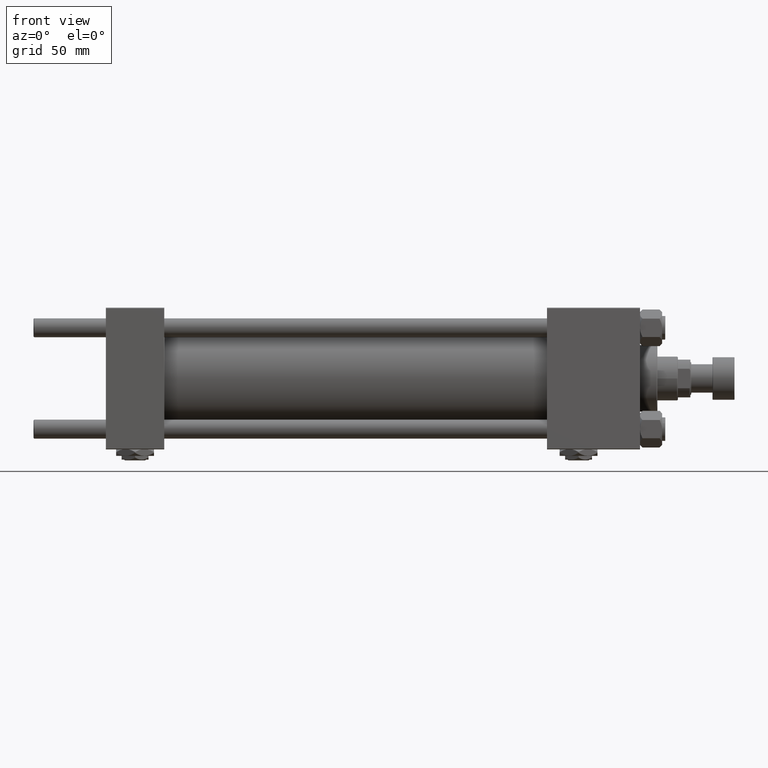
[diagram: clean part render]
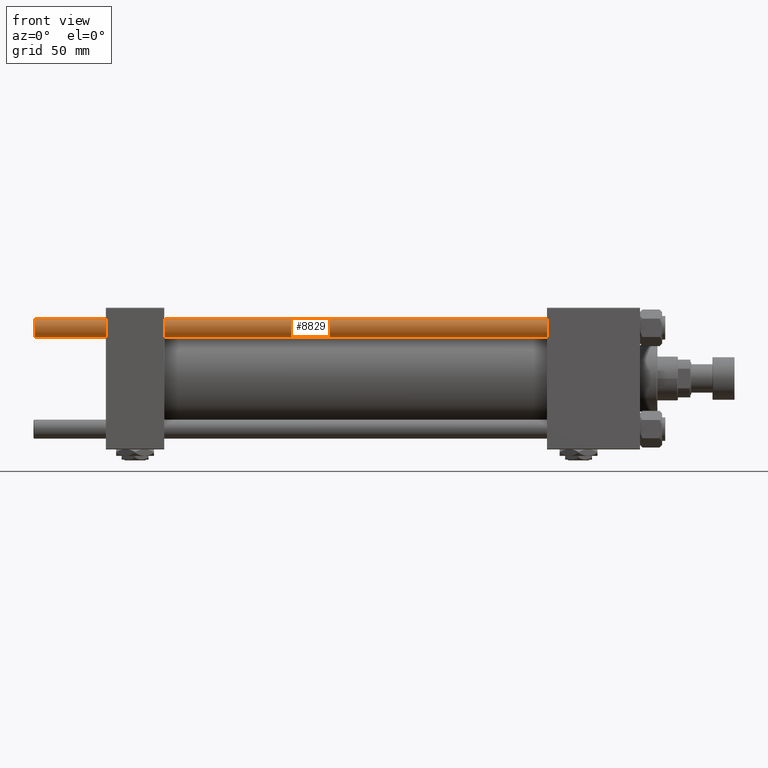
[diagram: same view with one face highlighted and labeled with its STEP entity id]
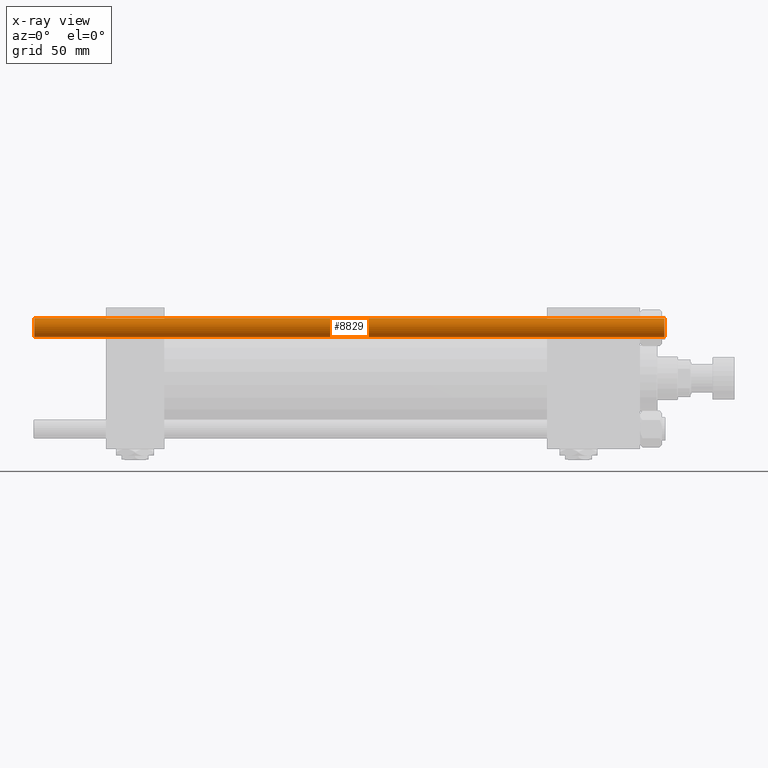
[diagram: x-ray of the same camera — body ghosted, the highlighted face saturated]
A machine part, front view. The second image highlights one B-rep face of the part: STEP entity #8829.
The next image is the same camera in x-ray: the body ghosted, the highlighted face saturated — about 0% of this face is hidden behind the body in this view.
In plain terms, the highlighted cylindrical surface (edge-blend (fillet) strip) has radius 6 mm, axis along (1, -0, 0).
Its self-contained STEP definition (entity closure, byte-faithful):
#1409 = AXIS2_PLACEMENT_3D ( 'NONE', #18432, #39314, #18964 ) ;
#1599 = DIRECTION ( 'NONE',  ( -0.000000000000000000, -0.000000000000000000, 1.000000000000000000 ) ) ;
#1872 = DIRECTION ( 'NONE',  ( 1.000000000000000000, 0.000000000000000000, 0.000000000000000000 ) ) ;
#2033 = DIRECTION ( 'NONE',  ( 1.000000000000000000, 0.000000000000000000, 0.000000000000000000 ) ) ;
#2417 = EDGE_CURVE ( 'NONE', #11493, #34510, #41577, .T. ) ;
#2992 = EDGE_LOOP ( 'NONE', ( #15939, #36161, #38729, #7906 ) ) ;
#6173 = VECTOR ( 'NONE', #31065, 1000.000000000000000 ) ;
#6297 = DIRECTION ( 'NONE',  ( -0.000000000000000000, -0.000000000000000000, -1.000000000000000000 ) ) ;
#7906 = ORIENTED_EDGE ( 'NONE', *, *, #45490, .F. ) ;
#8829 = ADVANCED_FACE ( 'NONE', ( #51747 ), #15504, .T. ) ;
#10263 = CARTESIAN_POINT ( 'NONE',  ( -6.000000000000000888, 0.000000000000000000, 401.0000000000000000 ) ) ;
#11493 = VERTEX_POINT ( 'NONE', #41270 ) ;
#15504 = CYLINDRICAL_SURFACE ( 'NONE', #1409, 6.000000000000000888 ) ;
#15939 = ORIENTED_EDGE ( 'NONE', *, *, #2417, .T. ) ;
#17094 = VERTEX_POINT ( 'NONE', #28984 ) ;
#18432 = CARTESIAN_POINT ( 'NONE',  ( 0.000000000000000000, 0.000000000000000000, 401.0000000000000000 ) ) ;
#18792 = AXIS2_PLACEMENT_3D ( 'NONE', #46194, #42191, #2033 ) ;
#18964 = DIRECTION ( 'NONE',  ( -1.000000000000000000, 0.000000000000000000, 0.000000000000000000 ) ) ;
#20499 = VECTOR ( 'NONE', #6297, 1000.000000000000000 ) ;
#23889 = VERTEX_POINT ( 'NONE', #38184 ) ;
#24379 = EDGE_CURVE ( 'NONE', #23889, #17094, #41598, .T. ) ;
#26395 = LINE ( 'NONE', #10263, #20499 ) ;
#28984 = CARTESIAN_POINT ( 'NONE',  ( -6.000000000000000888, 0.000000000000000000, 0.5000000000003335110 ) ) ;
#31065 = DIRECTION ( 'NONE',  ( -0.000000000000000000, -0.000000000000000000, -1.000000000000000000 ) ) ;
#34510 = VERTEX_POINT ( 'NONE', #35659 ) ;
#35659 = CARTESIAN_POINT ( 'NONE',  ( 6.000000000000000888, 7.347880794884119736E-16, 400.5000000000003411 ) ) ;
#36161 = ORIENTED_EDGE ( 'NONE', *, *, #50952, .T. ) ;
#37821 = CARTESIAN_POINT ( 'NONE',  ( 0.000000000000000000, 0.000000000000000000, 0.5000000000003335110 ) ) ;
#38184 = CARTESIAN_POINT ( 'NONE',  ( 6.000000000000000888, 7.347880794884119736E-16, 0.5000000000003335110 ) ) ;
#38729 = ORIENTED_EDGE ( 'NONE', *, *, #24379, .T. ) ;
#39314 = DIRECTION ( 'NONE',  ( -0.000000000000000000, -0.000000000000000000, -1.000000000000000000 ) ) ;
#41270 = CARTESIAN_POINT ( 'NONE',  ( -6.000000000000000888, 0.000000000000000000, 400.5000000000003411 ) ) ;
#41577 = CIRCLE ( 'NONE', #18792, 6.000000000000000888 ) ;
#41598 = CIRCLE ( 'NONE', #45790, 6.000000000000000888 ) ;
#42191 = DIRECTION ( 'NONE',  ( 0.000000000000000000, 0.000000000000000000, -1.000000000000000000 ) ) ;
#43211 = CARTESIAN_POINT ( 'NONE',  ( 6.000000000000000888, 7.347880794884119736E-16, 401.0000000000000000 ) ) ;
#45490 = EDGE_CURVE ( 'NONE', #11493, #17094, #26395, .T. ) ;
#45790 = AXIS2_PLACEMENT_3D ( 'NONE', #37821, #1599, #1872 ) ;
#46194 = CARTESIAN_POINT ( 'NONE',  ( 0.000000000000000000, 0.000000000000000000, 400.5000000000003411 ) ) ;
#50952 = EDGE_CURVE ( 'NONE', #34510, #23889, #51182, .T. ) ;
#51182 = LINE ( 'NONE', #43211, #6173 ) ;
#51747 = FACE_OUTER_BOUND ( 'NONE', #2992, .T. ) ;